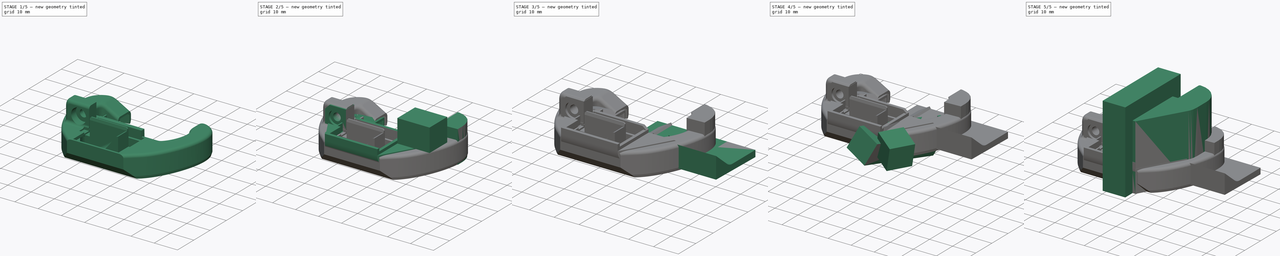
[diagram: build sequence overview — one tinted view per stage of 5, left to right]
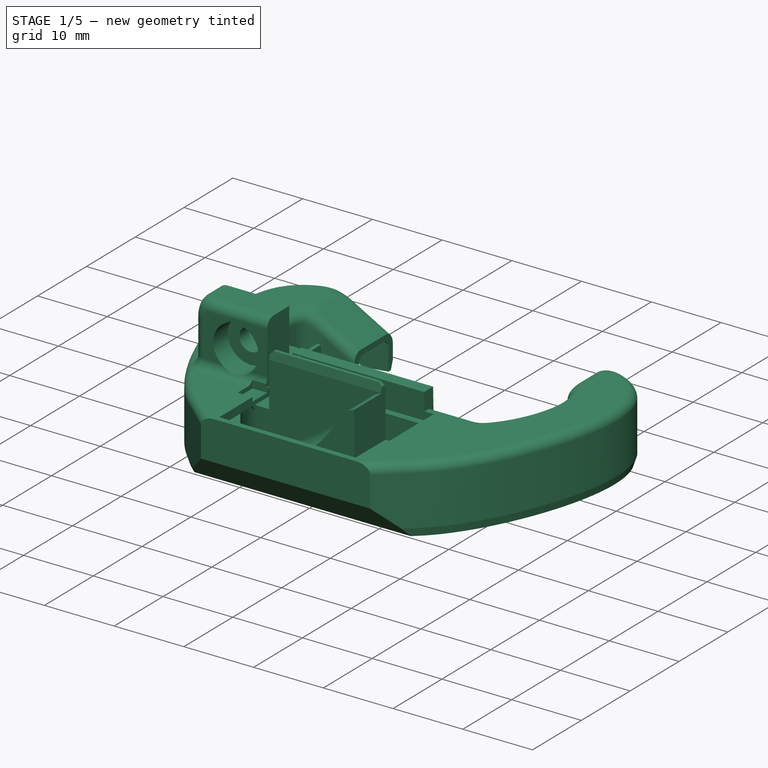
[diagram: stage 1 of 5 — iso view after this stage's code; geometry added in this stage tinted green]
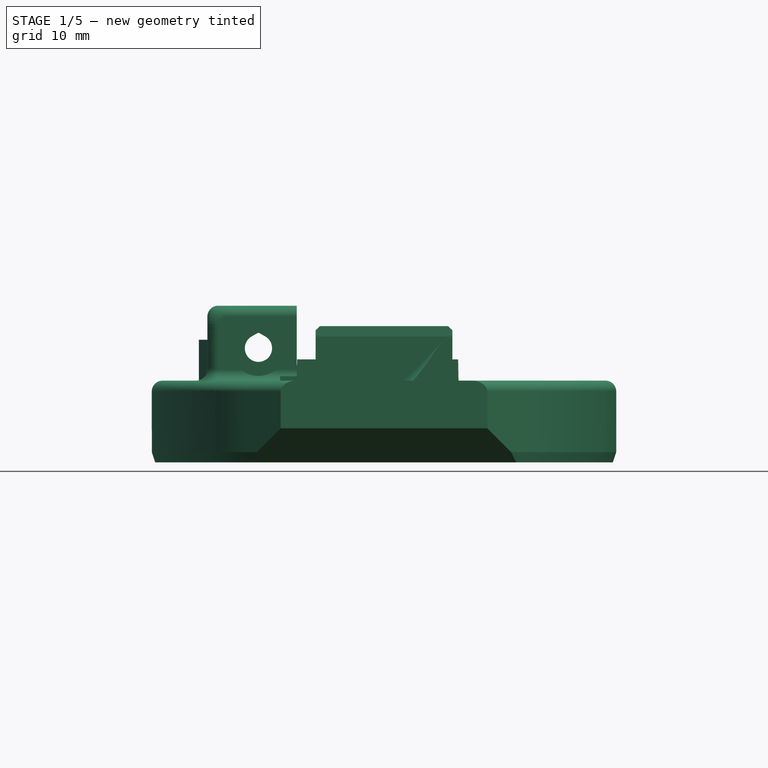
[diagram: stage 1 of 5 — front view after this stage's code; geometry added in this stage tinted green]
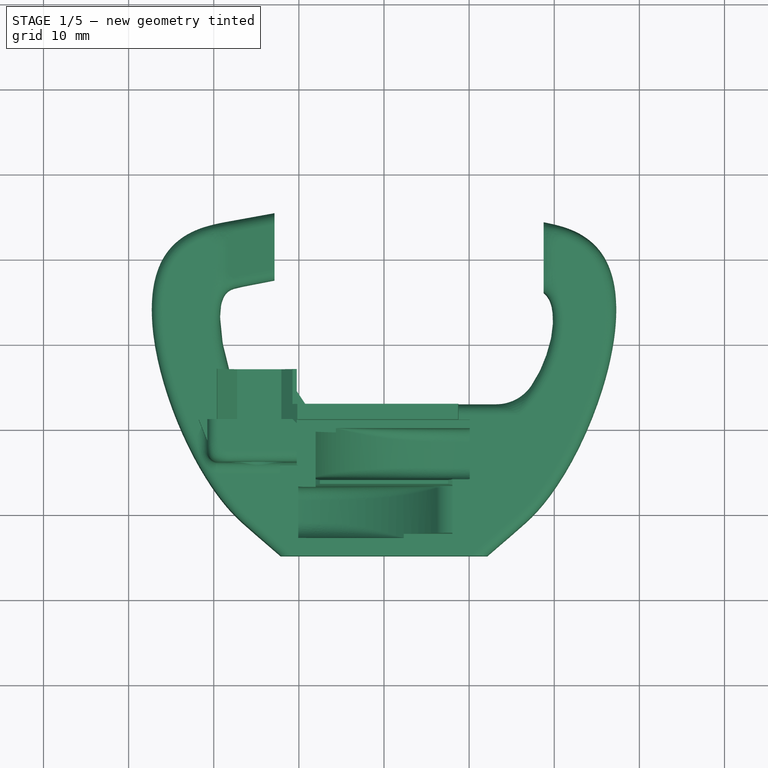
[diagram: stage 1 of 5 — top view after this stage's code; geometry added in this stage tinted green]
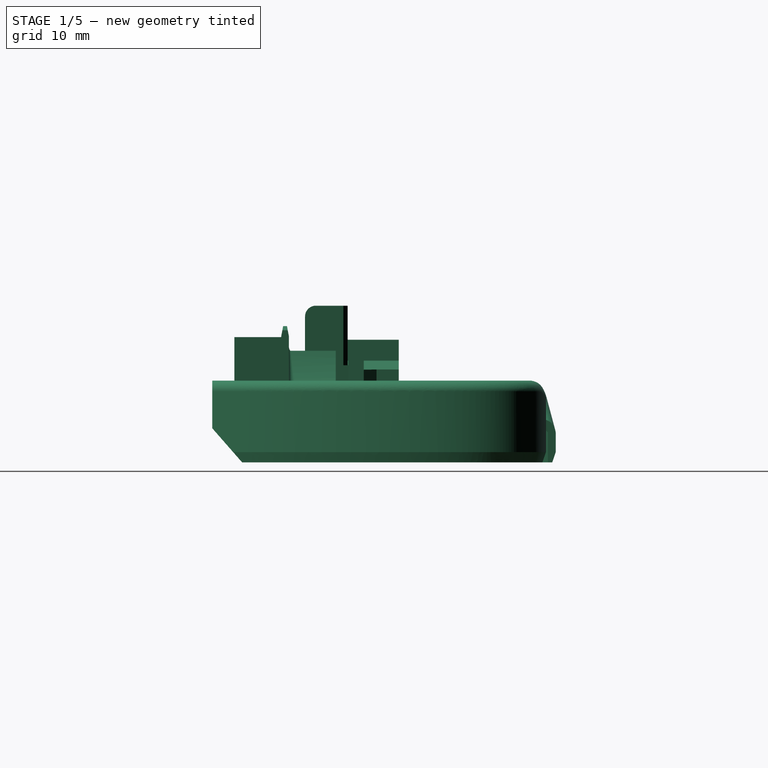
[diagram: stage 1 of 5 — right view after this stage's code; geometry added in this stage tinted green]
FCSTD DOCUMENT  (FreeCAD 0.18R16146 (Git))
Label: mosquito-duct-lite-mirror-extPR1
License: All rights reserved
LicenseURL: http://en.wikipedia.org/wiki/All_rights_reserved
objects: Part::Box×36, Part::Cut×23, Part::Feature×22, Part::Chamfer×19, Part::MultiFuse×8, Part::MultiCommon×5, Sketcher::SketchObject×4, PartDesign::Pad×4, PartDesign::Body×4, Part::Fillet×1
note: 130 computed .brp shape members not serialized (recipe doc carries the construction recipe); baked Part::Feature solids carry a one-line shape summary decoded from their .brp

FEATURE [Part::Feature] Part__Feature  label="part_cooling_duct beta"
  Placement = pos=(0,14,-1.5) rot=(0,0,1;0rad)
  shape: bbox 55.16 x 41.34 x 38.14 mm, 203 faces (baked)
FEATURE [Part::Box] Box016003003018006004  label="Cube048"
  AttacherType = Attacher::AttachEngine3D
  Height = 10
  Length = 23
  Placement = pos=(-10.5,-9,12.3) rot=(0,0,1;0rad)
  Width = 10
FEATURE [Part::Cut] Cut001007012002
  Base = -> Part__Feature
  Tool = -> Box016003003018006004
FEATURE [Part::Box] Box016003003018006005  label="Cube049"
  AttacherType = Attacher::AttachEngine3D
  Height = 10
  Length = 20.15
  Placement = pos=(-10.07,-10.4,8.6) rot=(0,0,1;0rad)
  Width = 0.5
FEATURE [Part::Box] Box016003003018006006  label="Cube050"
  AttacherType = Attacher::AttachEngine3D
  Height = 10
  Length = 20.15
  Placement = pos=(-10.07,-22.8,8.6) rot=(0,0,1;0rad)
  Width = 0.5
FEATURE [Part::MultiFuse] Fusion003004
  Shapes = -> [Box016003003018006006,Box016003003018006005]
FEATURE [Part::Cut] Cut001007012003
  Base = -> Cut001007012002
  Tool = -> Fusion003004
FEATURE [Part::Box] Box016003003018006007  label="Cube051"
  AttacherType = Attacher::AttachEngine3D
  Height = 10
  Length = 1.5
  Placement = pos=(-9.53,-24,8.6) rot=(0,0,1;0rad)
  Width = 15
FEATURE [Part::Box] Box016003003018006008  label="Cube052"
  AttacherType = Attacher::AttachEngine3D
  Height = 10
  Length = 1.5
  Placement = pos=(8.03,-24,8.6) rot=(0,0,1;0rad)
  Width = 15
FEATURE [Part::MultiFuse] Fusion003005
  Shapes = -> [Box016003003018006007,Box016003003018006008]
FEATURE [Part::Cut] Cut001007012004
  Base = -> Cut001007012003
  Tool = -> Fusion003005
FEATURE [Part::Box] Box016003003018006009  label="Cube053"
  AttacherType = Attacher::AttachEngine3D
  Height = 10
  Length = 10
  Placement = pos=(8.75,4.75,0) rot=(0,0,1;0rad)
  Width = 12
FEATURE [Part::Box] Box016003003018006010002  label="Cube056"
  AttacherType = Attacher::AttachEngine3D
  Height = 10
  Length = 10
  Placement = pos=(8.75,0,0) rot=(0,0,1;0rad)
  Width = 16
FEATURE [Part::Feature] Box016003003018006010003  label="Cube057"
  Placement = pos=(17.25,4.25,5) rot=(0,0,1;0rad)
  shape: bbox 9.087 x 10 x 6.008 mm, 6 faces (baked)
FEATURE [Part::Cut] Cut001007012006
  Base = -> Box016003003018006010003
  Tool = -> Box016003003018006010002
FEATURE [PartDesign::Body] Body003003
  Group = -> [Sketch002,Pad002]
  Origin = -> Origin002
  Tip = -> Pad002
FEATURE [Part::Feature] Pad002001  label="Pad003"
  shape: bbox 8.234 x 12.2 x 14 mm, 17 faces (baked)
FEATURE [Part::MultiCommon] Common003
  Shapes = -> [Pad002001,Cut001007012006]
FEATURE [Part::Box] Box016003003018006010004  label="Cube058"
  AttacherType = Attacher::AttachEngine3D
  Height = 10
  Length = 10
  Placement = pos=(16,0,8.75) rot=(0,0,1;0rad)
  Width = 15
FEATURE [Part::Cut] Cut001007012005
  Base = -> Cut001007012004
  Placement = pos=(0,0,-0.2) rot=(0,0,1;0rad)
  Tool = -> Box016003003018006009
FEATURE [Part::Cut] Cut001007012007
  Base = -> Common003
  Tool = -> Box016003003018006010004
FEATURE [Part::MultiFuse] Fusion003006
  Shapes = -> [Cut001007012007,Cut001007012005]
FEATURE [Part::Feature] Box016003003018006010005001  label="Cube060"
  Placement = pos=(0.25,4.75,-1) rot=(0,0,1;0rad)
  shape: bbox 10.02 x 10 x 2.721 mm, 6 faces (baked)
FEATURE [Part::Feature] Body003004001  label="Body003005"
  shape: bbox 1.427 x 7.676 x 10 mm, 15 faces (baked)
FEATURE [Part::MultiCommon] Common004
  Shapes = -> [Box016003003018006010005001,Body003004001]
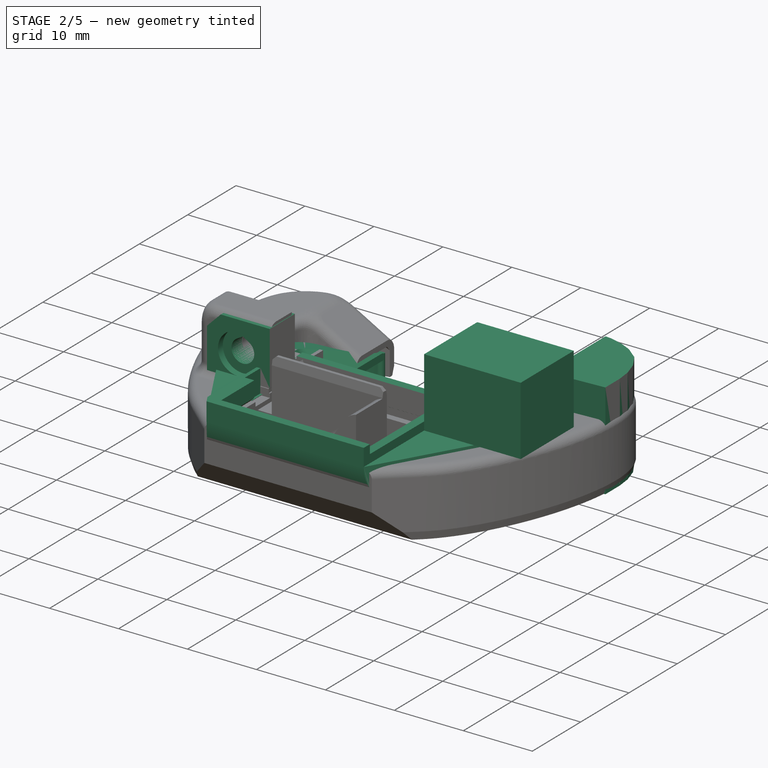
[diagram: stage 2 of 5 — iso view after this stage's code; geometry added in this stage tinted green]
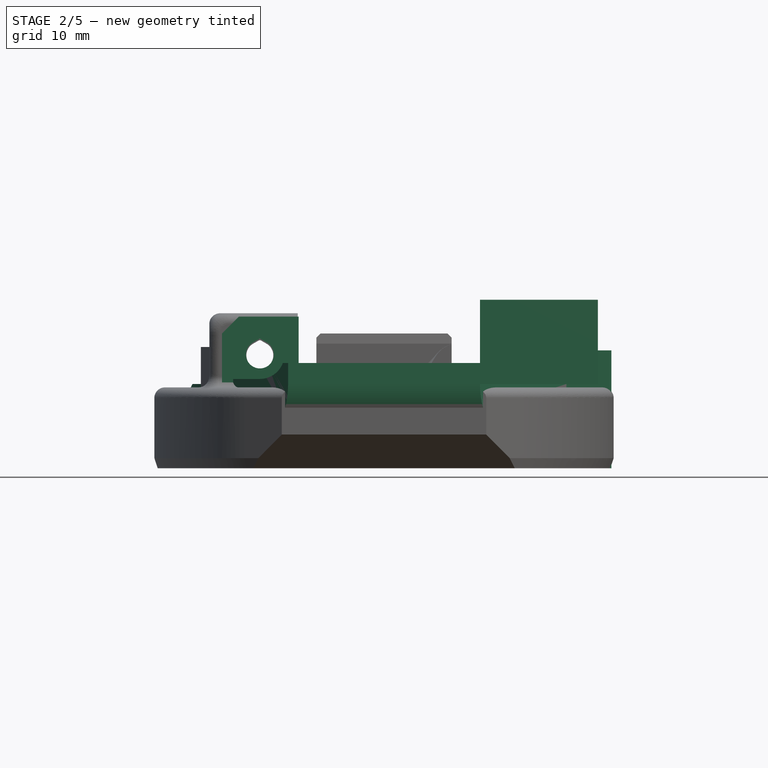
[diagram: stage 2 of 5 — front view after this stage's code; geometry added in this stage tinted green]
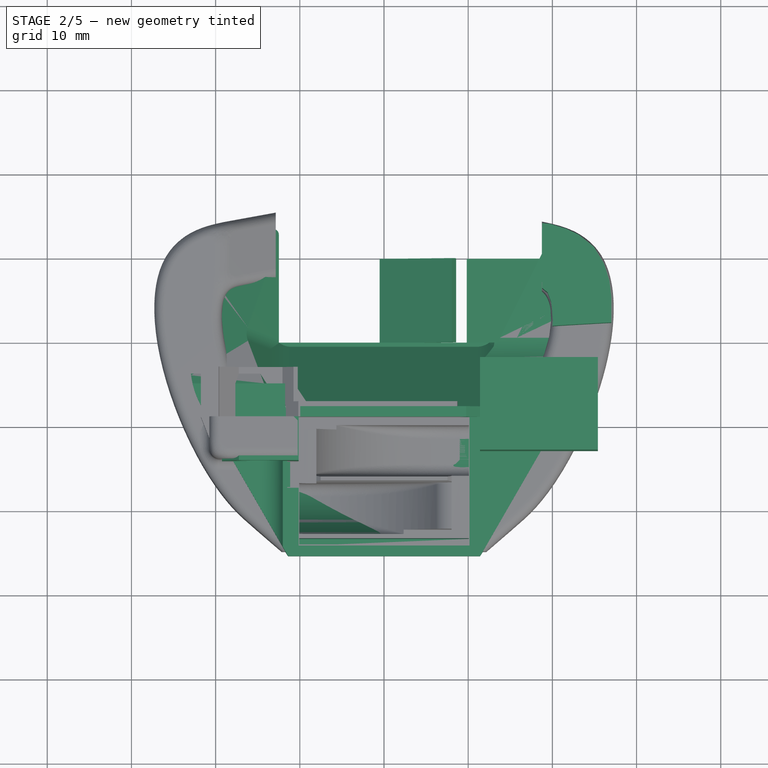
[diagram: stage 2 of 5 — top view after this stage's code; geometry added in this stage tinted green]
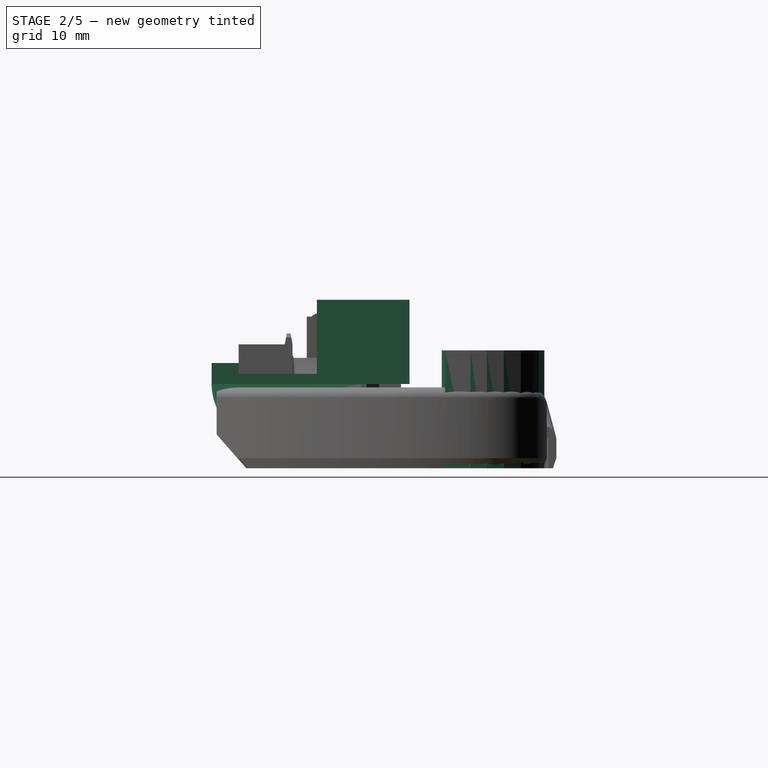
[diagram: stage 2 of 5 — right view after this stage's code; geometry added in this stage tinted green]
FEATURE [Part::Box] Box016003002  label="Cube021"
  AttacherType = Attacher::AttachEngine3D
  Height = 0.8
  Length = 12
  Placement = pos=(17.8831,-3.10572,0) rot=(0,0,1;1.10828rad)
  Width = 3.52
FEATURE [Part::Box] Box016003003016  label="Cube035"
  AttacherType = Attacher::AttachEngine3D
  Height = 10
  Length = 12
  Placement = pos=(11.5,-8.8,1.5) rot=(0,0,1;0rad)
  Width = 20
FEATURE [Part::Box] Box016003003018002  label="Cube039"
  AttacherType = Attacher::AttachEngine3D
  Height = 10
  Length = 10
  Placement = pos=(3.5,-2,0) rot=(0,0,1;0rad)
  Width = 15
FEATURE [Part::MultiCommon] Common001
  Shapes = -> [Cut001007003,Box016003003016]
FEATURE [Part::Cut] Cut001007005
  Base = -> Common001
  Tool = -> Cut001007001
FEATURE [Part::MultiCommon] Common002
  Shapes = -> [Body003002,Cut001007005]
FEATURE [Part::Cut] Cut001007006
  Base = -> Common002
  Tool = -> Box016003003018002
FEATURE [Part::Cut] Cut001007007
  Base = -> Cut001007006
  Tool = -> Box016003003018001
FEATURE [Part::Feature] Box016003003018003  label="Cube040"
  Placement = pos=(4.54,4.46,0) rot=(0,0,1;0rad)
  shape: bbox 16.09 x 18.78 x 10 mm, 6 faces (baked)
FEATURE [Part::Box] Box016003003018004  label="Cube041"
  AttacherType = Attacher::AttachEngine3D
  Height = 10
  Length = 14
  Placement = pos=(11.4,-13,10) rot=(0,0,1;0rad)
  Width = 11
FEATURE [Part::Chamfer] Chamfer
  Base = -> Box016003002
  Edges = 1 edges r=2: [Edge5]
FEATURE [Part::Chamfer] Chamfer017
  Base = -> Chamfer
  Edges = 1 edges r=0.5: [Edge2]
FEATURE [Part::Box] Box016003003018006002  label="Cube046"
  AttacherType = Attacher::AttachEngine3D
  Height = 1
  Length = 0.5
  Placement = pos=(15.4737,-0.0495139,3.2) rot=(0,0,-1;0.462512rad)
  Width = 10
FEATURE [Part::Chamfer] Chamfer018
  Base = -> Box016003003018006002
  Edges = 1 edges: [Edge8 r1=0.2 r2=0.4]
  Placement = pos=(0,0,0.2) rot=(0,0,1;0rad)
FEATURE [Part::Feature] Cut001007012001  label="Cut001007013"
  shape: bbox 46.01 x 38.99 x 18.01 mm, 134 faces (baked)
FEATURE [Part::Chamfer] Chamfer020
  Base = -> Cut001007012001
  Edges = 2 edges r=0.2: [Edge339,Edge343]
FEATURE [Part::Box] Box016003003018006010  label="Cube054"
  AttacherType = Attacher::AttachEngine3D
  Height = 1
  Length = 10
  Placement = pos=(0,0,0) rot=(0,1,0;5.74213rad)
  Width = 10
FEATURE [Sketcher::SketchObject] Sketch002
  MapMode = 5
  Support = -> [XY_Plane002]
  sketch-geometry (15):
    g0: LineSegment StartX=18.778 StartY=14.0238 StartZ=0 EndX=18.778 EndY=6.31782 EndZ=0
    g1: LineSegment StartX=18.778 StartY=6.31782 StartZ=0 EndX=19.4226 EndY=5.78826 EndZ=0
    g2: LineSegment StartX=19.4226 StartY=5.78826 StartZ=0 EndX=19.856 EndY=4.63822 EndZ=0
    g3: LineSegment StartX=19.856 StartY=4.63822 StartZ=0 EndX=19.9393 EndY=3.95487 EndZ=0
    g4: LineSegment StartX=19.9393 StartY=3.95487 StartZ=0 EndX=20.056 EndY=2.49926 EndZ=0
    g5: LineSegment StartX=20.056 StartY=2.49926 StartZ=0 EndX=20.0115 EndY=1.82702 EndZ=0
    g6: LineSegment StartX=20.0115 StartY=1.82702 StartZ=0 EndX=27.0117 EndY=2.23259 EndZ=0
    g7: LineSegment StartX=27.0117 StartY=2.23259 StartZ=0 EndX=27.0117 EndY=5.23269 EndZ=0
    g8: LineSegment StartX=27.0117 StartY=5.23269 StartZ=0 EndX=26.7729 EndY=7.19386 EndZ=0
    g9: LineSegment StartX=26.7729 StartY=7.19386 StartZ=0 EndX=26.1338 EndY=9.21251 EndZ=0
    g10: LineSegment StartX=26.1338 StartY=9.21251 StartZ=0 EndX=24.9226 EndY=11.2126 EndZ=0
    g11: LineSegment StartX=24.9226 StartY=11.2126 StartZ=0 EndX=23.1115 EndY=12.6626 EndZ=0
    g12: LineSegment StartX=23.1115 StartY=12.6626 StartZ=0 EndX=21.6448 EndY=13.3571 EndZ=0
    g13: LineSegment StartX=21.6448 StartY=13.3571 StartZ=0 EndX=19.7114 EndY=13.9404 EndZ=0
    g14: LineSegment StartX=19.7114 StartY=13.9404 StartZ=0 EndX=18.778 EndY=14.0238 EndZ=0
  constraints (17):
    c: Vertical(g0)
    c: Coincident(g0,g1)
    c: Coincident(g1,g2)
    c: Coincident(g2,g3)
    c: Coincident(g3,g4)
    c: Coincident(g4,g5)
    c: Coincident(g5,g6)
    c: Coincident(g6,g7)
    c: Vertical(g7)
    c: Coincident(g7,g8)
    c: Coincident(g8,g9)
    c: Coincident(g9,g10)
    c: Coincident(g10,g11)
    c: Coincident(g11,g12)
    c: Coincident(g12,g13)
    c: Coincident(g13,g14)
    c: Coincident(g14,g0)
FEATURE [PartDesign::Pad] Pad002
  Length = 14
  Length2 = 100
  Profile = -> Sketch002
  Type = 0
FEATURE [Sketcher::SketchObject] Sketch003
  MapMode = 5
  Support = -> [XY_Plane003]
  sketch-geometry (13):
    g0: LineSegment StartX=18.7474 StartY=13.3461 StartZ=0 EndX=18.7474 EndY=7.1032 EndZ=0
    g1: LineSegment StartX=18.7474 StartY=7.1032 StartZ=0 EndX=19.02 EndY=6.96101 EndZ=0
    g2: LineSegment StartX=19.02 StartY=6.96101 StartZ=0 EndX=19.1873 EndY=6.84555 EndZ=0
    g3: LineSegment StartX=19.1873 StartY=6.84555 StartZ=0 EndX=19.5406 EndY=6.56716 EndZ=0
    g4: LineSegment StartX=19.5406 StartY=6.56716 StartZ=0 EndX=19.7263 EndY=6.36636 EndZ=0
    g5: LineSegment StartX=19.7263 StartY=6.36636 StartZ=0 EndX=19.8652 EndY=6.18061 EndZ=0
    g6: LineSegment StartX=19.8652 StartY=6.18061 StartZ=0 EndX=20.0727 EndY=5.92794 EndZ=0
    g7: LineSegment StartX=20.0727 StartY=5.92794 StartZ=0 EndX=20.1748 EndY=5.70203 EndZ=0
    g8: LineSegment StartX=20.1748 StartY=5.70203 StartZ=0 EndX=20.1748 EndY=12.9804 EndZ=0
    g9: LineSegment StartX=20.1748 StartY=12.9804 StartZ=0 EndX=20.1748 EndY=13.0246 EndZ=0
    g10: LineSegment StartX=20.1748 StartY=13.0246 StartZ=0 EndX=18.7595 EndY=13.3746 EndZ=0
    g11: LineSegment StartX=18.7595 StartY=13.3746 StartZ=0 EndX=18.7474 EndY=13.3778 EndZ=0
    g12: LineSegment StartX=18.7474 StartY=13.3778 StartZ=0 EndX=18.7474 EndY=13.3461 EndZ=0
  constraints (17):
    c: Vertical(g0)
    c: Coincident(g0,g1)
    c: Coincident(g1,g2)
    c: Coincident(g2,g3)
    c: Coincident(g3,g4)
    c: Coincident(g4,g5)
    c: Coincident(g5,g6)
    c: Coincident(g6,g7)
    c: Coincident(g7,g8)
    c: Vertical(g8)
    c: Coincident(g8,g9)
    c: Vertical(g9)
    c: Coincident(g9,g10)
    c: Coincident(g10,g11)
    c: Coincident(g12,g11)
    c: Coincident(g12,g0)
    c: Vertical(g12)
FEATURE [PartDesign::Pad] Pad002002
  Length = 10
  Length2 = 100
  Profile = -> Sketch003
  Type = 0
FEATURE [PartDesign::Body] Body003004
  Group = -> [Sketch003,Pad002002]
  Origin = -> Origin003
  Tip = -> Pad002002
FEATURE [Part::Box] Box016003003018006010005  label="Cube059"
  AttacherType = Attacher::AttachEngine3D
  Height = 1
  Length = 10
  Placement = pos=(10,0,0) rot=(0,1,0;6.10865rad)
  Width = 10
FEATURE [Part::Cut] Cut001007012008
  Base = -> Fusion003006
  Tool = -> Common004
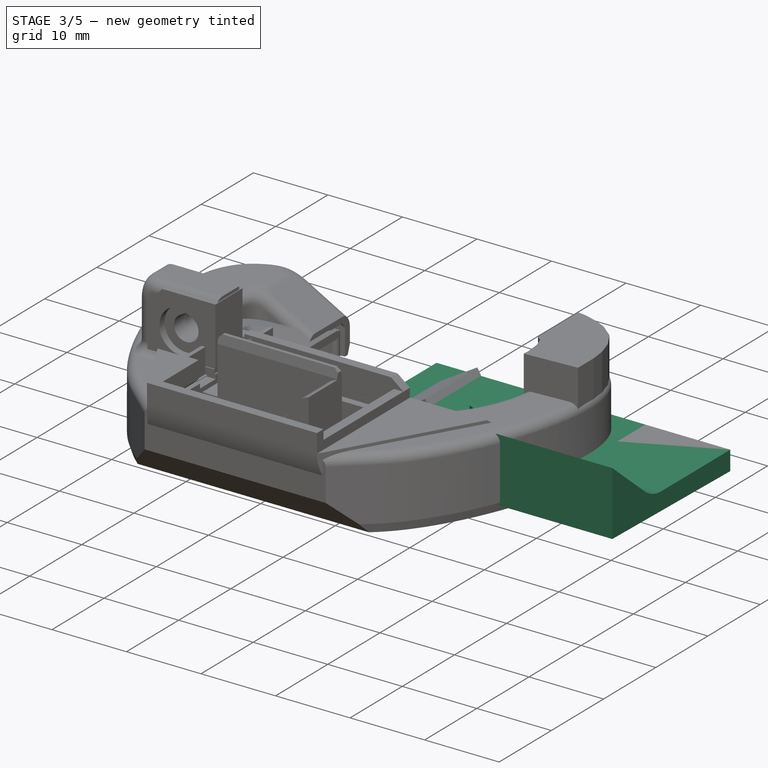
[diagram: stage 3 of 5 — iso view after this stage's code; geometry added in this stage tinted green]
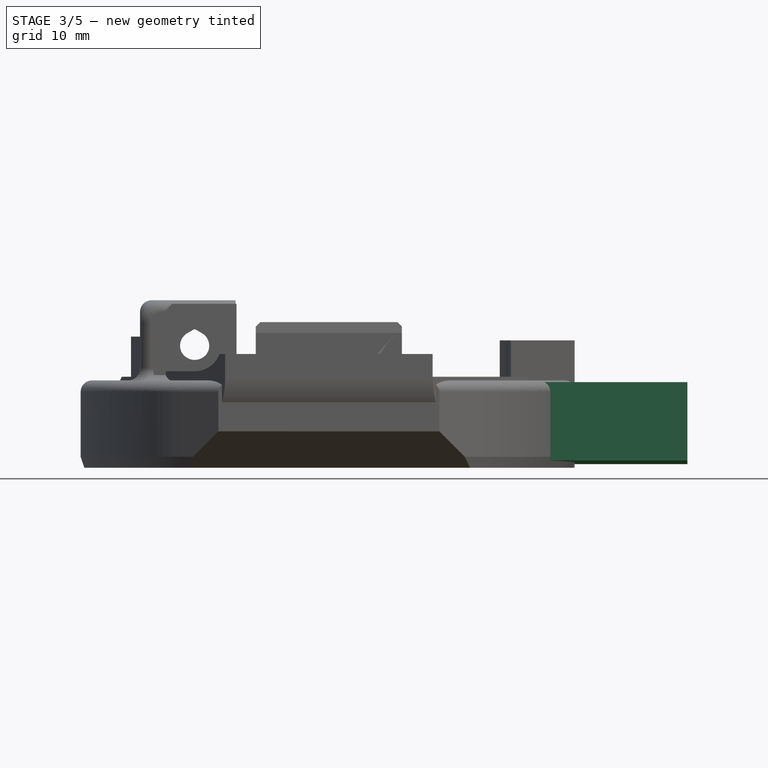
[diagram: stage 3 of 5 — front view after this stage's code; geometry added in this stage tinted green]
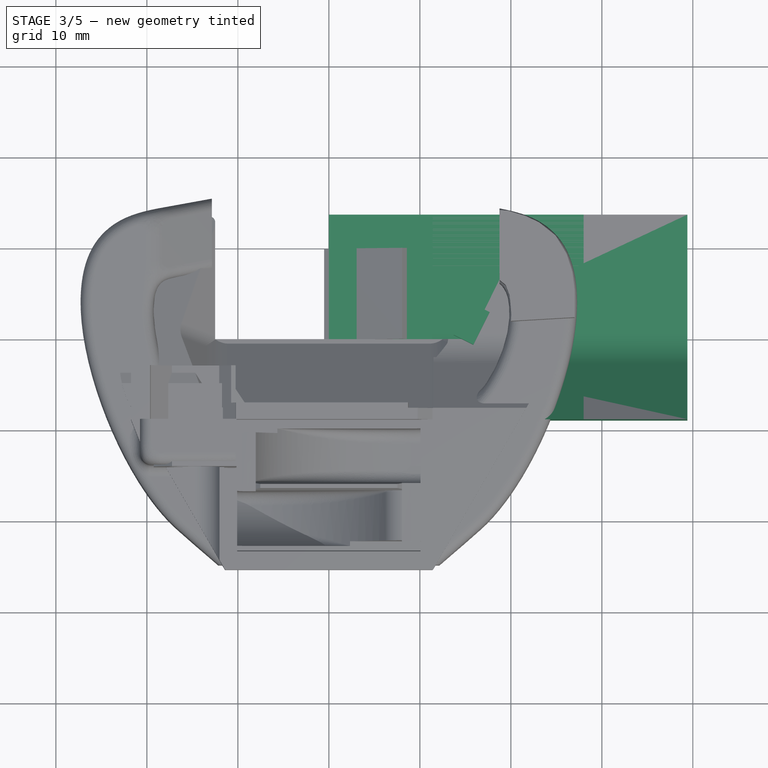
[diagram: stage 3 of 5 — top view after this stage's code; geometry added in this stage tinted green]
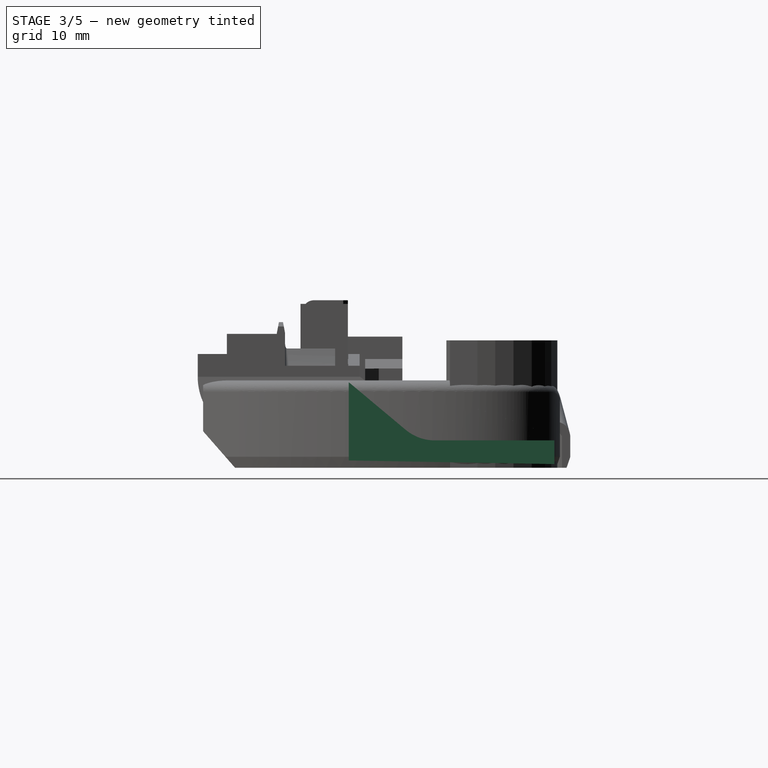
[diagram: stage 3 of 5 — right view after this stage's code; geometry added in this stage tinted green]
FEATURE [Part::Feature] Cut001001  label="Cut003"
  Placement = pos=(3e-15,14,4) rot=(0,0,-1;1.5708rad)
  shape: bbox 22 x 20 x 12.5 mm, 14 faces (baked)
FEATURE [Part::Feature] Box016002  label="Cube018"
  Placement = pos=(13.5,0,0) rot=(0,0,1;0rad)
  shape: bbox 31.72 x 42.04 x 10 mm, 6 faces (baked)
FEATURE [Part::Feature] Box016003001  label="Cube020"
  Placement = pos=(13.95,-1.9,0) rot=(0,0,1;0rad)
  shape: bbox 7.142 x 12.64 x 1 mm, 6 faces (baked)
FEATURE [Part::Box] Box  label="Cube"
  AttacherType = Attacher::AttachEngine3D
  Height = 10
  Length = 10
  Placement = pos=(3.5,0,0) rot=(0,0,1;0rad)
  Width = 10
FEATURE [PartDesign::Body] Body
  Group = -> [Sketch,Pad]
  Origin = -> Origin
  Tip = -> Pad
FEATURE [Part::Feature] Body001
  shape: bbox 16 x 38.8 x 29 mm, 23 faces (baked)
FEATURE [Part::Cut] Cut
  Base = -> Part__Feature050
  Tool = -> Box016002
FEATURE [Part::Cut] Cut001002
  Base = -> Cut
  Tool = -> Box
FEATURE [Part::Chamfer] Chamfer001
  Base = -> Cut001002
  Edges = 1 edges: [Edge40 r1=2 r2=0.4]
FEATURE [Part::Box] Box016003003014  label="Cube033"
  AttacherType = Attacher::AttachEngine3D
  Height = 1.6
  Length = 2.4
  Placement = pos=(13.729,0.41808,5) rot=(0,0,-1;0.462512rad)
  Width = 4
FEATURE [Sketcher::SketchObject] Sketch001
  MapMode = 5
  Placement = pos=(0,0,0) rot=(0.57735,0.57735,0.57735;2.0944rad)
  Support = -> [YZ_Plane001]
  sketch-geometry (5):
    g0: LineSegment StartX=-8.9 StartY=9.4 StartZ=0 EndX=-1.25 EndY=3 EndZ=0
    g1: LineSegment StartX=-1.25 StartY=3 StartZ=0 EndX=13.7 EndY=3 EndZ=0
    g2: LineSegment StartX=13.7 StartY=3 StartZ=0 EndX=13.7 EndY=0.4 EndZ=0
    g3: LineSegment StartX=13.7 StartY=0.4 StartZ=0 EndX=-8.9 EndY=0.8 EndZ=0
    g4: LineSegment StartX=-8.9 StartY=0.8 StartZ=0 EndX=-8.9 EndY=9.4 EndZ=0
  constraints (5):
    c: Coincident(g0,g1)
    c: Coincident(g1,g2)
    c: Coincident(g2,g3)
    c: Coincident(g3,g4)
    c: Coincident(g4,g0)
FEATURE [PartDesign::Pad] Pad001
  Length = 28
  Length2 = 100
  Placement = pos=(0,0,0) rot=(0.57735,0.57735,0.57735;2.0944rad)
  Profile = -> Sketch001
  Type = 0
FEATURE [PartDesign::Body] Body003
  Group = -> [Sketch001,Pad001]
  Origin = -> Origin001
  Tip = -> Pad001
FEATURE [Part::Feature] Body003001  label="Body004"
  Placement = pos=(11.4,0,0) rot=(0,0,1;0rad)
  shape: bbox 28 x 22.6 x 9 mm, 7 faces (baked)
FEATURE [Part::Fillet] Fillet
  Base = -> Body003001
  Edges = 1 edges r=5: [Edge2]
FEATURE [Part::Feature] Fillet001
  Placement = pos=(0,0,1) rot=(0,0,1;0rad)
  shape: bbox 28 x 22.6 x 9 mm, 8 faces (baked)
FEATURE [Part::Box] Box016003003017  label="Cube036"
  AttacherType = Attacher::AttachEngine3D
  Height = 10
  Length = 12
  Placement = pos=(11.5,-8.8,3.5) rot=(0,0,1;0rad)
  Width = 20
FEATURE [Part::Cut] Cut001007
  Base = -> Box016003003017
  Placement = pos=(0,0,0.65) rot=(0,0,1;0rad)
  Tool = -> Fillet001
FEATURE [Part::Feature] Body003002  label="Body005"
  shape: bbox 16 x 38.8 x 29 mm, 23 faces (baked)
FEATURE [Part::Feature] Box016003003018001  label="Cube038"
  Placement = pos=(4.54,4.46,0) rot=(0,0,1;0rad)
  shape: bbox 16.09 x 18.78 x 10 mm, 6 faces (baked)
FEATURE [Part::Feature] Cut001007001  label="Cut001008"
  Placement = pos=(0,0,0.65) rot=(0,0,1;0rad)
  shape: bbox 12 x 20 x 9.5 mm, 8 faces (baked)
FEATURE [Part::Feature] Cut001007003
  Placement = pos=(0,0,-0.35) rot=(0,0,1;0rad)
  shape: bbox 12 x 20 x 9.5 mm, 8 faces (baked)
FEATURE [Part::Cut] Cut001007004
  Base = -> Chamfer001
  Tool = -> Cut001007
FEATURE [Part::Cut] Cut001007008
  Base = -> Cut001007007
  Tool = -> Box016003003018004
FEATURE [Part::Box] Box016003003018007  label="Cube044"
  AttacherType = Attacher::AttachEngine3D
  Height = 10
  Length = 10
  Placement = pos=(5.5,0,0) rot=(0,0,1;0rad)
  Width = 17
FEATURE [Part::Feature] Box016003003018006001  label="Cube045"
  Placement = pos=(3.05,4.46,0) rot=(0,0,1;0rad)
  shape: bbox 16.53 x 19.68 x 10 mm, 6 faces (baked)
FEATURE [Part::MultiFuse] Fusion003
  Shapes = -> [Box016003003018007,Box016003003018006001]
FEATURE [Part::Feature] Fusion003001  label="Fusion004"
  shape: bbox 17.58 x 19.68 x 10 mm, 13 faces (baked)
FEATURE [Part::Cut] Cut001007009
  Base = -> Cut001007004
  Tool = -> Fusion003001
FEATURE [Part::Feature] Fusion003002  label="Fusion005"
  shape: bbox 17.58 x 19.68 x 10 mm, 13 faces (baked)
FEATURE [Part::Cut] Cut001007010
  Base = -> Cut001007008
  Tool = -> Fusion003002
FEATURE [Part::Box] Box016003003018006003  label="Cube047"
  AttacherType = Attacher::AttachEngine3D
  Height = 1
  Length = 1
  Placement = pos=(15.16,0.442065,1.4) rot=(0,0,-1;0.462512rad)
  Width = 9.1
FEATURE [Part::Chamfer] Chamfer019
  Base = -> Box016003003018006003
  Edges = 1 edges r=0.5: [Edge8]
  Placement = pos=(0,0,-1) rot=(0,0,1;0rad)
FEATURE [Part::MultiFuse] Fusion003003
  Shapes = -> [Cut001007009,Cut001007010,Chamfer017,Chamfer018]
FEATURE [Part::Cut] Cut001007011
  Base = -> Fusion003003
  Tool = -> Fusion003
FEATURE [Part::Cut] Cut001007012
  Base = -> Cut001007011
  Tool = -> Chamfer019
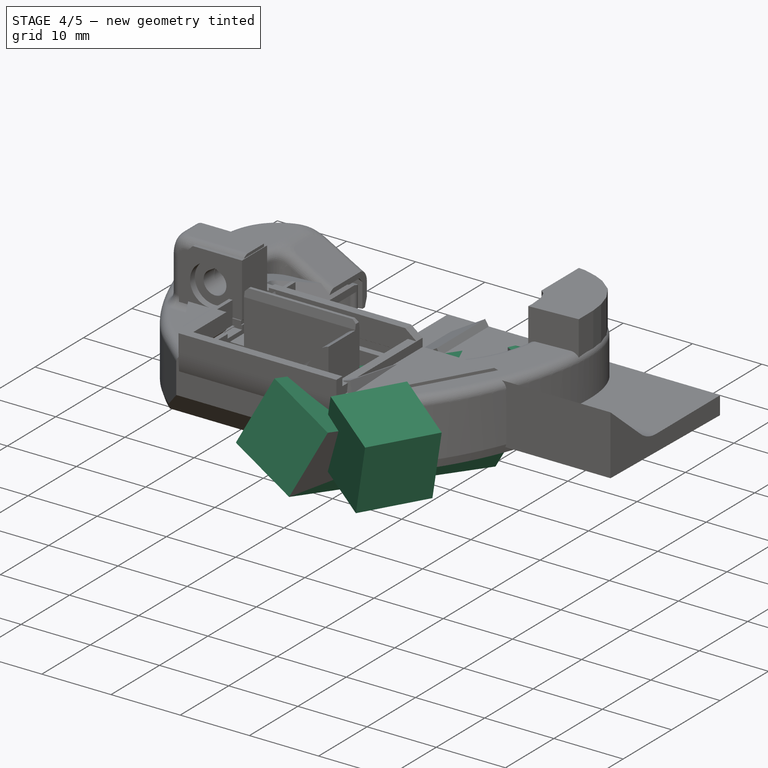
[diagram: stage 4 of 5 — iso view after this stage's code; geometry added in this stage tinted green]
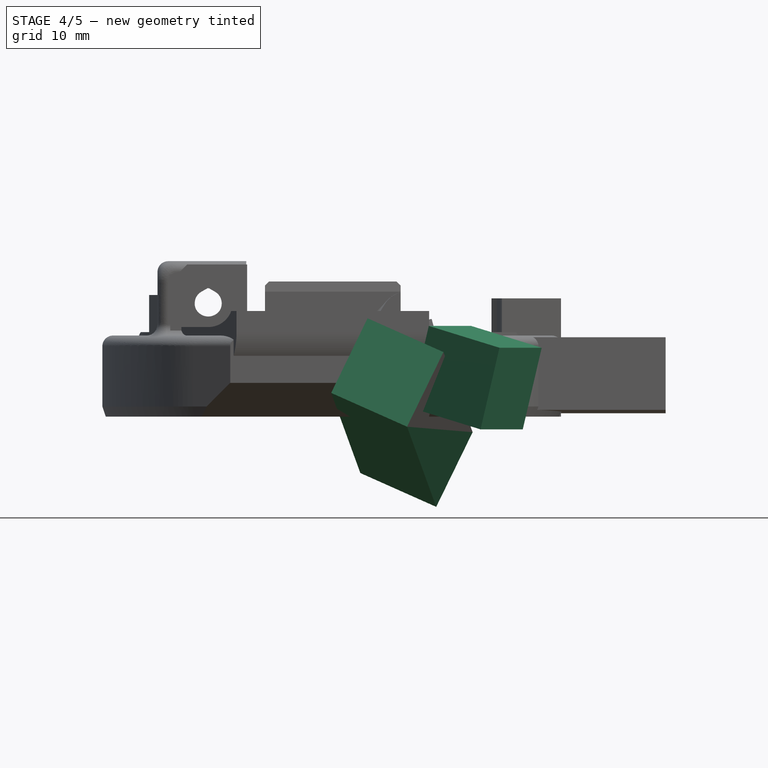
[diagram: stage 4 of 5 — front view after this stage's code; geometry added in this stage tinted green]
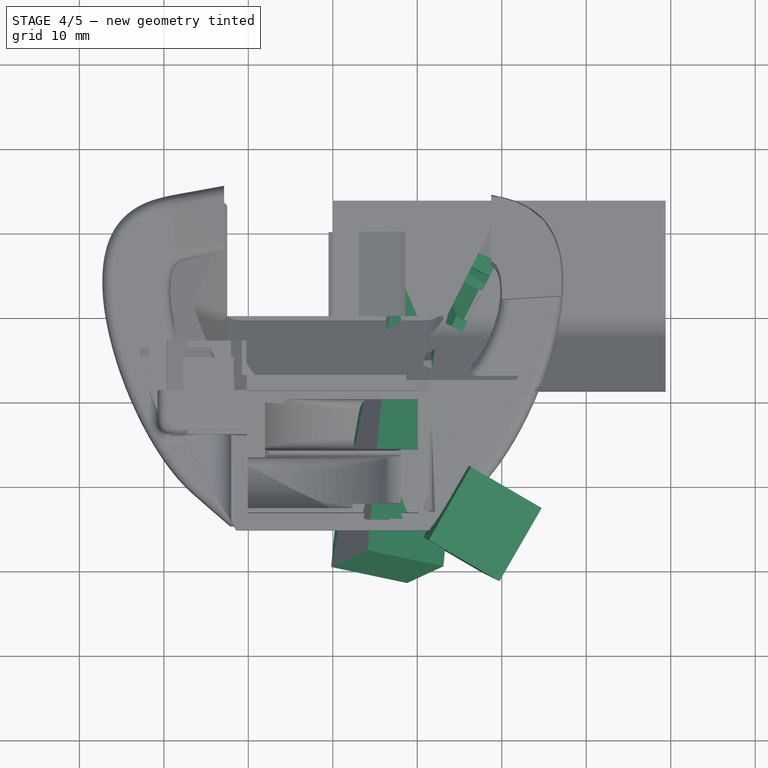
[diagram: stage 4 of 5 — top view after this stage's code; geometry added in this stage tinted green]
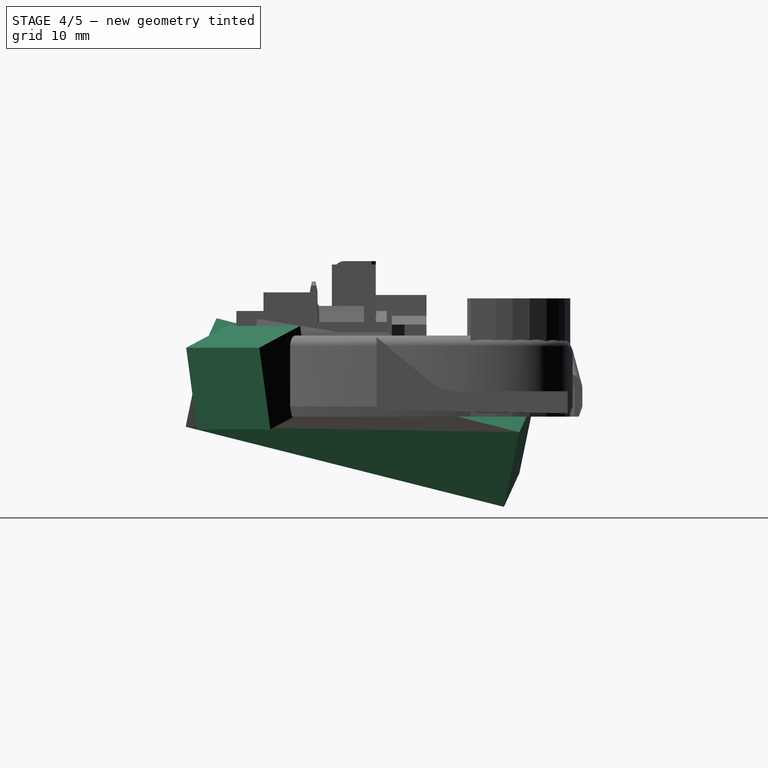
[diagram: stage 4 of 5 — right view after this stage's code; geometry added in this stage tinted green]
FEATURE [Part::Box] Box016003003006  label="Cube028"
  AttacherType = Attacher::AttachEngine3D
  Height = 5.5
  Length = 1
  Placement = pos=(12.1552,-23.944,6.07476) rot=(-0.521066,-0.850755,0.0686;0.30706rad)
  Width = 21
FEATURE [Part::Chamfer] Chamfer002
  Base = -> Box016003003006
  Edges = 1 edges r=3: [Edge12]
FEATURE [Part::Box] Box016003003007  label="Cube029"
  AttacherType = Attacher::AttachEngine3D
  Height = 10
  Length = 10
  Placement = pos=(9.12116,-25.3244,1.0798) rot=(0.117344,0.437934,-0.891316;0.584055rad)
  Width = 10
FEATURE [Part::Box] Box016003003008  label="Cube030"
  AttacherType = Attacher::AttachEngine3D
  Height = 10
  Length = 10
  Placement = pos=(8.78951,-31.5066,-1.19582) rot=(-0.232345,-0.971269,0.05151;1.16105rad)
  Width = 39
FEATURE [Part::Box] Box016003003011  label="type-1-support"
  AttacherType = Attacher::AttachEngine3D
  Height = 6
  Length = 0.2
  Placement = pos=(12.1,-15.9,0) rot=(0,0,1;0rad)
  Width = 8
FEATURE [Part::Box] Box016003003012  label="Cube031"
  AttacherType = Attacher::AttachEngine3D
  Height = 2.6
  Length = 2.4
  Placement = pos=(14.9337,2.8344,3) rot=(0,0,-1;0.462512rad)
  Width = 8.2
FEATURE [Part::Box] Box016003003013  label="Cube032"
  AttacherType = Attacher::AttachEngine3D
  Height = 2.6
  Length = 2.4
  Placement = pos=(13.1489,-0.745335,3) rot=(0,0,-1;0.462512rad)
  Width = 4
FEATURE [Part::Chamfer] Chamfer006
  Base = -> Box016003003013
  Edges = 1 edges r=1: [Edge2]
FEATURE [Part::Chamfer] Chamfer007
  Base = -> Box016003003012
  Edges = 1 edges: [Edge12 r1=1 r2=3]
FEATURE [Part::Chamfer] Chamfer008
  Base = -> Chamfer007
  Edges = 1 edges: [Edge15 r1=2 r2=1]
FEATURE [Part::Chamfer] Chamfer009
  Base = -> Chamfer006
  Edges = 1 edges: [Edge12 r1=2 r2=1]
FEATURE [Part::Chamfer] Chamfer010
  Base = -> Chamfer009
  Edges = 1 edges r=1: [Edge7]
FEATURE [Part::Chamfer] Chamfer011
  Base = -> Chamfer008
  Edges = 1 edges r=1: [Edge9]
FEATURE [Part::Box] Box016003003015  label="Cube034"
  AttacherType = Attacher::AttachEngine3D
  Height = 1.6
  Length = 2.4
  Placement = pos=(15.5138,3.99782,5) rot=(0,0,-1;0.462512rad)
  Width = 2
FEATURE [Part::Chamfer] Chamfer012
  Base = -> Box016003003015
  Edges = 1 edges r=0.5: [Edge12]
FEATURE [Part::Chamfer] Chamfer013
  Base = -> Chamfer012
  Edges = 1 edges r=0.5: [Edge6]
FEATURE [Part::Chamfer] Chamfer014
  Base = -> Box016003003014
  Edges = 1 edges: [Edge2 r1=1 r2=2]
FEATURE [Part::Chamfer] Chamfer015
  Base = -> Chamfer014
  Edges = 1 edges r=1: [Edge1]
FEATURE [Part::MultiFuse] Fusion002
  Shapes = -> [Chamfer015,Chamfer013,Chamfer010,Chamfer011]
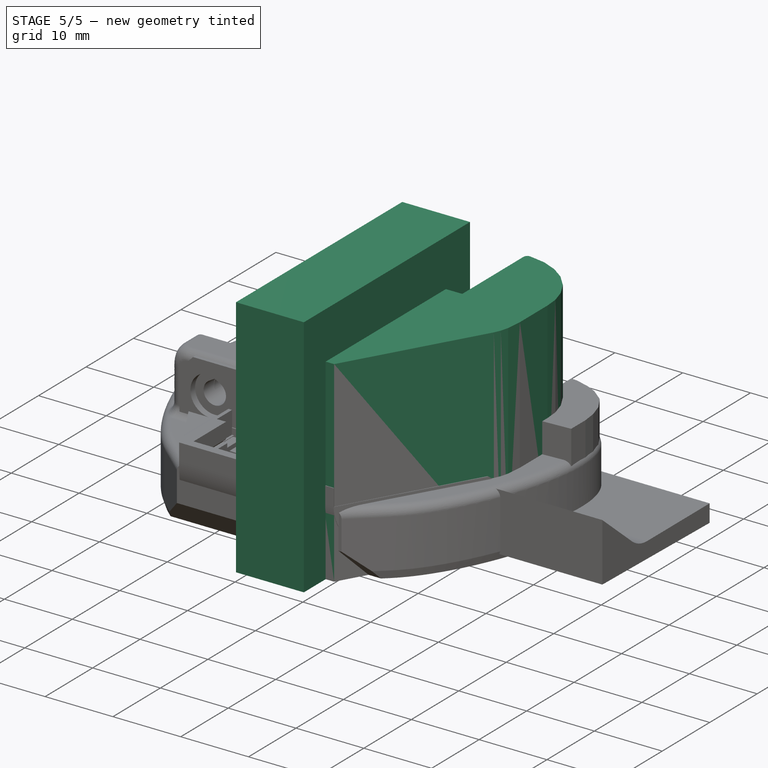
[diagram: stage 5 of 5 — iso view after this stage's code; geometry added in this stage tinted green]
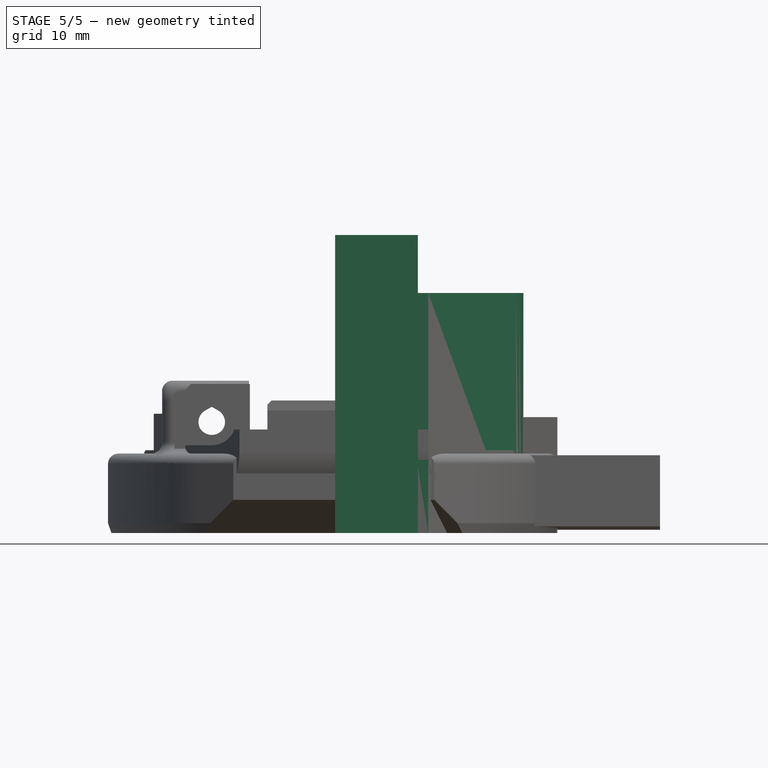
[diagram: stage 5 of 5 — front view after this stage's code; geometry added in this stage tinted green]
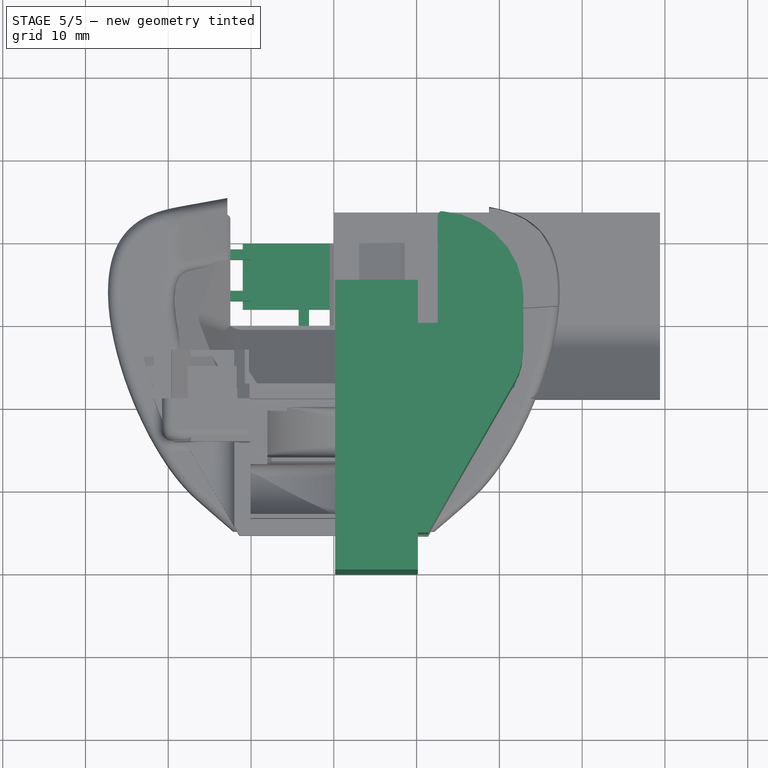
[diagram: stage 5 of 5 — top view after this stage's code; geometry added in this stage tinted green]
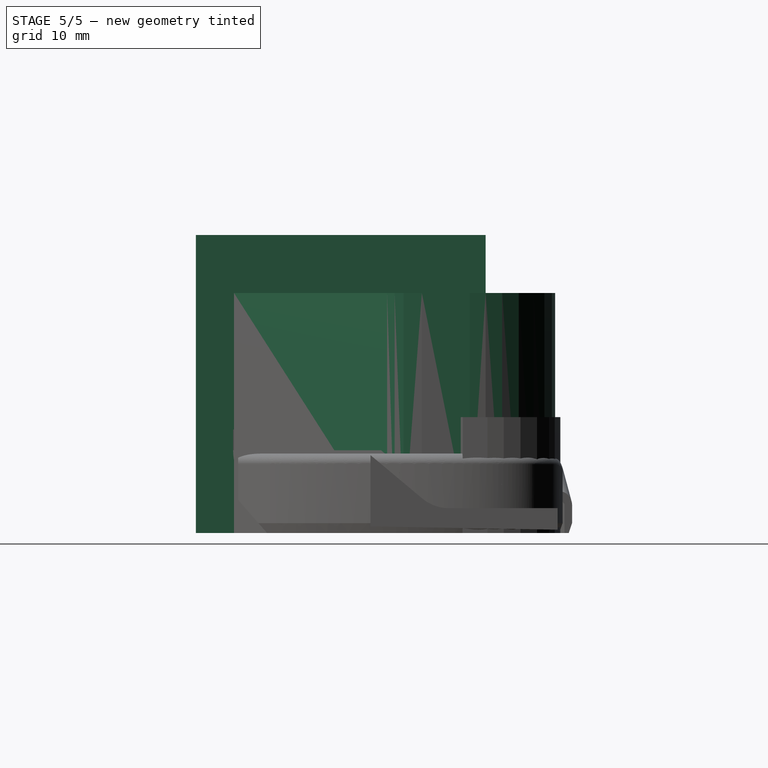
[diagram: stage 5 of 5 — right view after this stage's code; geometry added in this stage tinted green]
FEATURE [Part::Feature] Part__Feature050  label="nozzle_fan_duct"
  Placement = pos=(0.005,14,-6.0794e-11) rot=(0,0,1;0rad)
  shape: bbox 46.01 x 38.99 x 18.01 mm, 128 faces (baked)
FEATURE [Part::Box] Box009  label="Cube009"
  AttacherType = Attacher::AttachEngine3D
  Height = 2.8
  Length = 1.25
  Placement = pos=(3,-3,0) rot=(0,0,1;0rad)
  Width = 6
FEATURE [Part::Box] Box010  label="Cube010"
  AttacherType = Attacher::AttachEngine3D
  Height = 2.8
  Length = 1.25
  Placement = pos=(-4.25,-3,0) rot=(0,0,1;0rad)
  Width = 6
FEATURE [Part::Box] Box011  label="Cube011"
  AttacherType = Attacher::AttachEngine3D
  Height = 2.8
  Length = 4
  Placement = pos=(-14,3,0) rot=(0,0,1;0rad)
  Width = 1.25
FEATURE [Part::Box] Box012  label="Cube012"
  AttacherType = Attacher::AttachEngine3D
  Height = 2.8
  Length = 4
  Placement = pos=(-14,8,0) rot=(0,0,1;0rad)
  Width = 1.25
FEATURE [Part::Box] Box013  label="Cube013"
  AttacherType = Attacher::AttachEngine3D
  Height = 0.2
  Length = 17
  Placement = pos=(-11,2,0) rot=(0,0,1;0rad)
  Width = 8
FEATURE [Part::MultiFuse] Fusion001  label="support"
  Shapes = -> [Box010,Box011,Box009,Box012,Box013]
FEATURE [Sketcher::SketchObject] Sketch
  MapMode = 5
  Support = -> [XY_Plane]
  sketch-geometry (21):
    g0: LineSegment StartX=7 StartY=-0.1 StartZ=0 EndX=6.9 EndY=-25.4 EndZ=0
    g1: LineSegment StartX=6.9 StartY=-25.4 StartZ=0 EndX=11.4 EndY=-25.4 EndZ=0
    g2: LineSegment StartX=11.4 StartY=-25.4 StartZ=0 EndX=22 EndY=-6.9 EndZ=0
    g3: LineSegment StartX=22 StartY=-6.9 StartZ=0 EndX=22.4 EndY=-6 EndZ=0
    g4: LineSegment StartX=22.4 StartY=-6 StartZ=0 EndX=22.7 EndY=-4.9 EndZ=0
    g5: LineSegment StartX=22.7 StartY=-4.9 StartZ=0 EndX=22.9 EndY=-2.7 EndZ=0
    g6: LineSegment StartX=22.9 StartY=-2.7 StartZ=0 EndX=22.9 EndY=3.1 EndZ=0
    g7: LineSegment StartX=22.9 StartY=3.1 StartZ=0 EndX=22.7414 EndY=5 EndZ=0
    g8: LineSegment StartX=22.7414 StartY=5 StartZ=0 EndX=22.1372 EndY=7 EndZ=0
    g9: LineSegment StartX=22.1372 StartY=7 StartZ=0 EndX=21.0359 EndY=9 EndZ=0
    g10: LineSegment StartX=21.0359 StartY=9 StartZ=0 EndX=19.4207 EndY=10.8 EndZ=0
    g11: LineSegment StartX=19.4207 StartY=10.8 StartZ=0 EndX=17.6 EndY=12.1 EndZ=0
    g12: LineSegment StartX=17.6 StartY=12.1 StartZ=0 EndX=15.5 EndY=13 EndZ=0
    g13: LineSegment StartX=15.5 StartY=13 StartZ=0 EndX=13.2 EndY=13.4 EndZ=0
    g14: LineSegment StartX=13.2 StartY=13.4 StartZ=0 EndX=12.9456 EndY=13.4 EndZ=0
    g15: LineSegment StartX=12.9456 StartY=13.4 StartZ=0 EndX=12.8 EndY=13.3398 EndZ=0
    g16: LineSegment StartX=12.8 StartY=13.3398 StartZ=0 EndX=12.6517 EndY=13.2 EndZ=0
    g17: LineSegment StartX=12.6517 StartY=13.2 StartZ=0 EndX=12.5755 EndY=13.0706 EndZ=0
    g18: LineSegment StartX=12.5755 StartY=13.0706 StartZ=0 EndX=12.5418 EndY=12.8339 EndZ=0
    g19: LineSegment StartX=12.5418 StartY=12.8339 StartZ=0 EndX=12.5612 EndY=-0.071919 EndZ=0
    g20: LineSegment StartX=12.5612 StartY=-0.071919 StartZ=0 EndX=7 EndY=-0.1 EndZ=0
  constraints (21):
    c: Coincident(g0,g1)
    c: Coincident(g1,g2)
    c: Coincident(g2,g3)
    c: Coincident(g3,g4)
    c: Coincident(g4,g5)
    c: Coincident(g5,g6)
    c: Coincident(g6,g7)
    c: Coincident(g7,g8)
    c: Coincident(g8,g9)
    c: Coincident(g9,g10)
    c: Coincident(g10,g11)
    c: Coincident(g11,g12)
    c: Coincident(g12,g13)
    c: Coincident(g13,g14)
    c: Coincident(g14,g15)
    c: Coincident(g15,g16)
    c: Coincident(g16,g17)
    c: Coincident(g17,g18)
    c: Coincident(g18,g19)
    c: Coincident(g19,g20)
    c: Coincident(g20,g0)
FEATURE [PartDesign::Pad] Pad
  Length = 29
  Length2 = 100
  Profile = -> Sketch
  Type = 0
FEATURE [Part::Box] Box016003003  label="Cube022"
  AttacherType = Attacher::AttachEngine3D
  Height = 21
  Length = 28
  Placement = pos=(0.305808,-29.1525,3.00829) rot=(-0.139755,-0.59352,-0.792592;0.577564rad)
  Width = 50
FEATURE [Part::Box] Box016003003003  label="Cube025"
  AttacherType = Attacher::AttachEngine3D
  Height = 36
  Length = 10
  Placement = pos=(0.15,-30,0) rot=(0,0,1;0rad)
  Width = 35
FEATURE [Part::Box] Box016003003004  label="Cube026"
  AttacherType = Attacher::AttachEngine3D
  Height = 21
  Length = 28
  Placement = pos=(-0.000277156,-28.9999,3.94799) rot=(-0.139755,-0.59352,-0.792592;0.577564rad)
  Width = 50
FEATURE [Part::Cut] Cut001003
  Base = -> Box016003003
  Tool = -> Box016003003004
FEATURE [Part::Feature] Body002
  shape: bbox 16 x 38.8 x 29 mm, 23 faces (baked)
FEATURE [Part::Box] Box016003003005  label="Cube027"
  AttacherType = Attacher::AttachEngine3D
  Height = 22
  Length = 11
  Placement = pos=(1.2,-32,0) rot=(0,0,1;0rad)
  Width = 40
FEATURE [Part::MultiCommon] Common
  Shapes = -> [Cut001003,Body001]
FEATURE [Part::Cut] Cut001004
  Base = -> Common
  Tool = -> Box016003003005
FEATURE [Part::Chamfer] Chamfer003
  Base = -> Chamfer002
  Edges = 1 edges: [Edge6 r1=1 r2=2]
FEATURE [Part::Chamfer] Chamfer004
  Base = -> Chamfer003
  Edges = 1 edges: [Edge8 r1=12 r2=2]
FEATURE [Part::MultiFuse] Fusion
  Shapes = -> [Cut001004,Chamfer004]
FEATURE [Part::Cut] Cut001005
  Base = -> Fusion
  Tool = -> Box016003003007
FEATURE [Part::Cut] Cut001006  label="type-1"
  Base = -> Cut001005
  Tool = -> Box016003003008
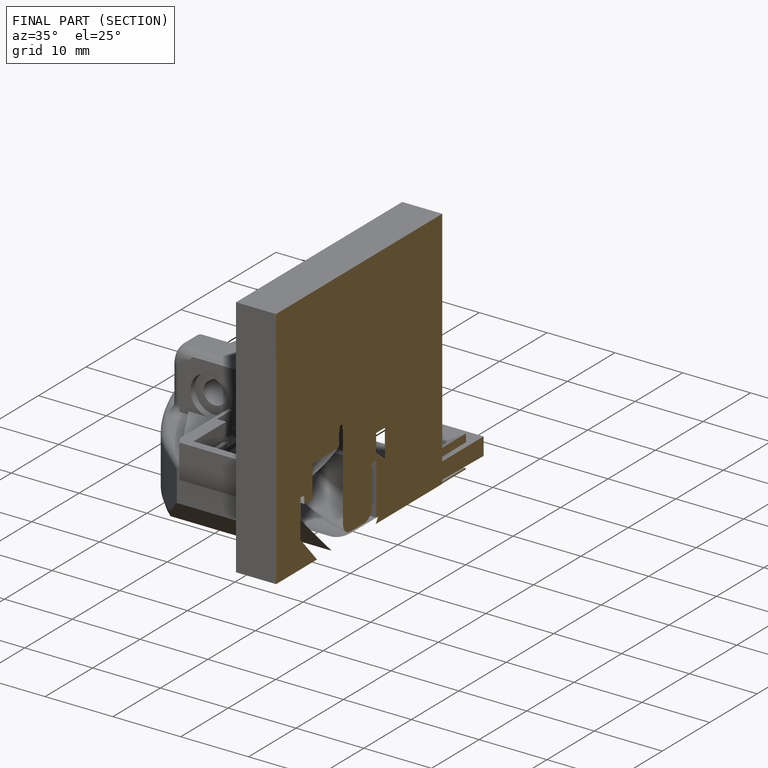
[diagram: finished part — half-section view (interior)]
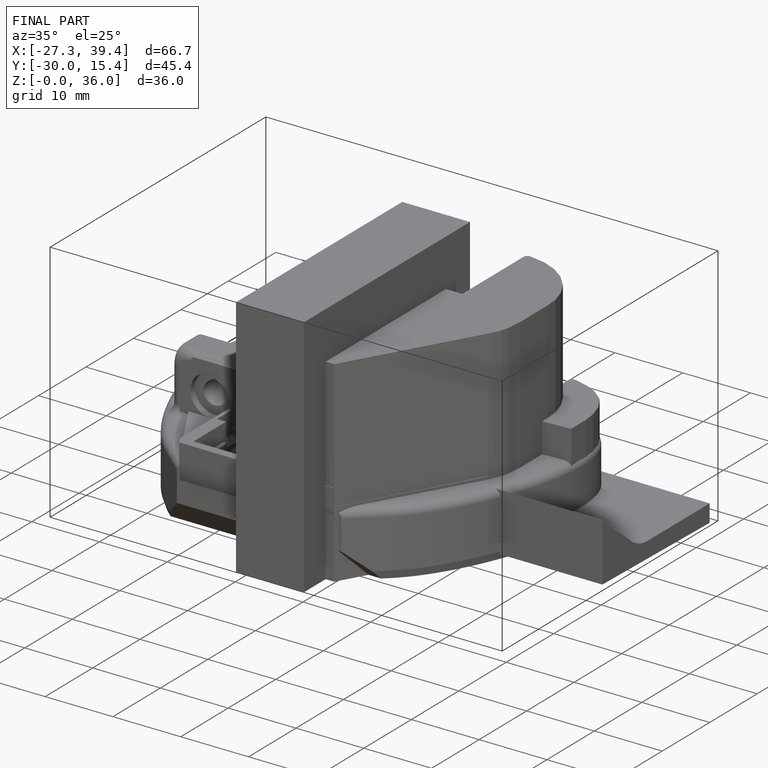
[diagram: finished part — iso view with bounding-box wireframe]
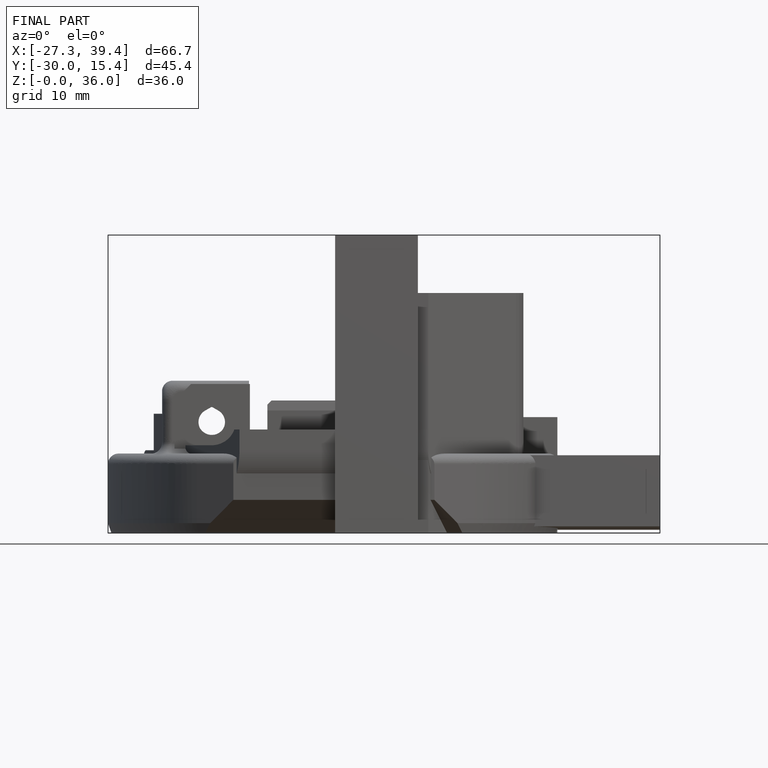
[diagram: finished part — front view with bounding-box wireframe]
